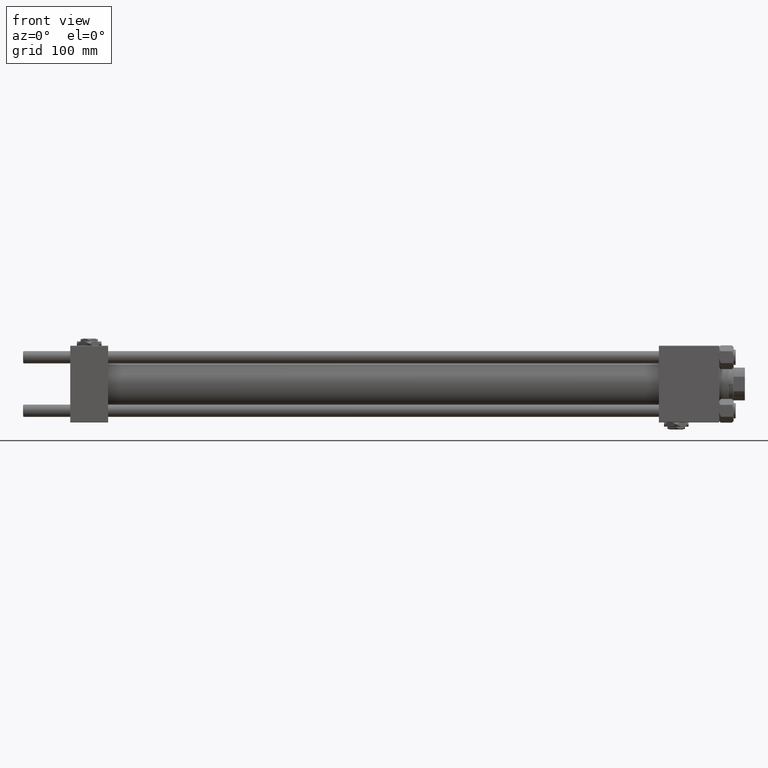
[diagram: clean part render]
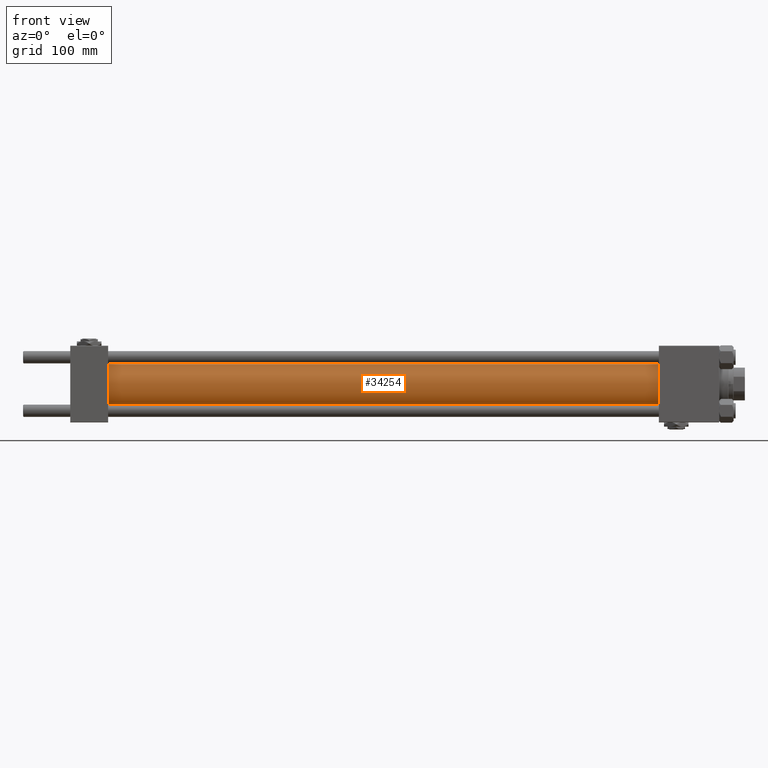
[diagram: same view with one face highlighted and labeled with its STEP entity id]
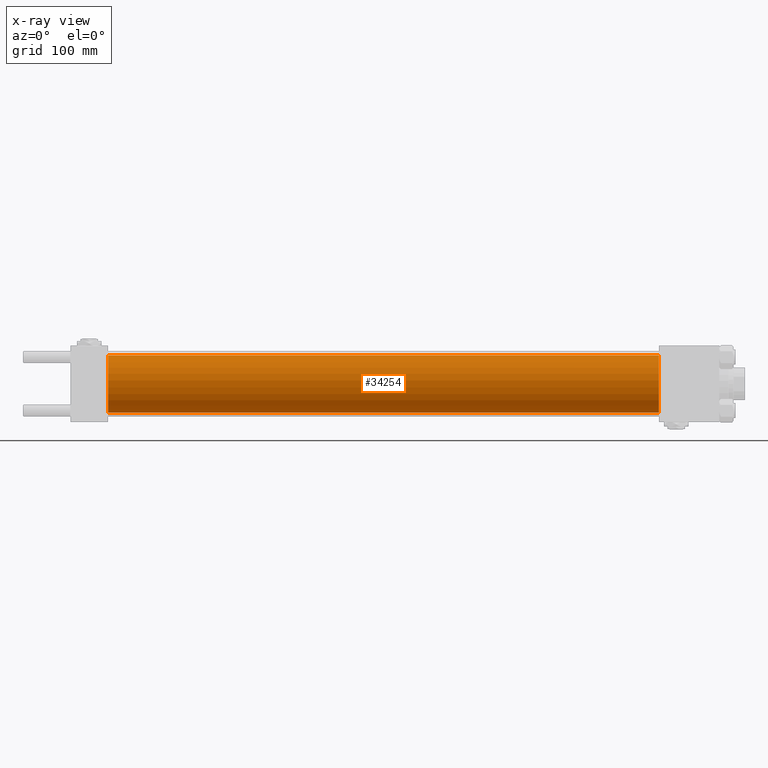
[diagram: x-ray of the same camera — body ghosted, the highlighted face saturated]
A machine part, front view. The second image highlights one B-rep face of the part: STEP entity #34254.
The next image is the same camera in x-ray: the body ghosted, the highlighted face saturated — about 0% of this face is hidden behind the body in this view.
In plain terms, the highlighted cylindrical surface (edge-blend (fillet) strip) has radius 28 mm, axis along (-1, -0, -0).
Its self-contained STEP definition (entity closure, byte-faithful):
#167 = AXIS2_PLACEMENT_3D ( 'NONE', #5586, #9006, #45372 ) ;
#2833 = CARTESIAN_POINT ( 'NONE',  ( 575.0000000000001137, 3.429011037612589276E-15, -28.00000000000000000 ) ) ;
#2874 = CARTESIAN_POINT ( 'NONE',  ( 575.0000000000001137, 0.000000000000000000, 0.000000000000000000 ) ) ;
#2952 = CARTESIAN_POINT ( 'NONE',  ( 575.0000000000001137, 0.000000000000000000, 0.000000000000000000 ) ) ;
#5540 = ORIENTED_EDGE ( 'NONE', *, *, #32901, .F. ) ;
#5586 = CARTESIAN_POINT ( 'NONE',  ( 37.00000000000003553, 0.000000000000000000, 0.000000000000000000 ) ) ;
#9006 = DIRECTION ( 'NONE',  ( 1.000000000000000000, -0.000000000000000000, 0.000000000000000000 ) ) ;
#10258 = CARTESIAN_POINT ( 'NONE',  ( 575.0000000000001137, 3.429011037612589276E-15, -28.00000000000000000 ) ) ;
#12708 = VERTEX_POINT ( 'NONE', #35493 ) ;
#12996 = VECTOR ( 'NONE', #27300, 1000.000000000000000 ) ;
#14842 = VECTOR ( 'NONE', #26211, 1000.000000000000000 ) ;
#15262 = ORIENTED_EDGE ( 'NONE', *, *, #46131, .T. ) ;
#17265 = VERTEX_POINT ( 'NONE', #27722 ) ;
#18091 = LINE ( 'NONE', #10258, #14842 ) ;
#19724 = EDGE_CURVE ( 'NONE', #12708, #17265, #40121, .T. ) ;
#23051 = EDGE_CURVE ( 'NONE', #12708, #51123, #44858, .T. ) ;
#23270 = DIRECTION ( 'NONE',  ( -1.000000000000000000, -0.000000000000000000, -0.000000000000000000 ) ) ;
#26211 = DIRECTION ( 'NONE',  ( -1.000000000000000000, -0.000000000000000000, -0.000000000000000000 ) ) ;
#26508 = ORIENTED_EDGE ( 'NONE', *, *, #19724, .T. ) ;
#26939 = DIRECTION ( 'NONE',  ( 0.000000000000000000, 0.000000000000000000, 1.000000000000000000 ) ) ;
#27300 = DIRECTION ( 'NONE',  ( -1.000000000000000000, -0.000000000000000000, -0.000000000000000000 ) ) ;
#27722 = CARTESIAN_POINT ( 'NONE',  ( 37.00000000000003553, 0.000000000000000000, 28.00000000000000000 ) ) ;
#30314 = EDGE_LOOP ( 'NONE', ( #5540, #38062, #26508, #15262 ) ) ;
#30549 = VERTEX_POINT ( 'NONE', #48247 ) ;
#32901 = EDGE_CURVE ( 'NONE', #51123, #30549, #18091, .T. ) ;
#34254 = ADVANCED_FACE ( 'NONE', ( #50518 ), #47364, .T. ) ;
#34888 = DIRECTION ( 'NONE',  ( 0.000000000000000000, 0.000000000000000000, -1.000000000000000000 ) ) ;
#35493 = CARTESIAN_POINT ( 'NONE',  ( 575.0000000000001137, 0.000000000000000000, 28.00000000000000000 ) ) ;
#38062 = ORIENTED_EDGE ( 'NONE', *, *, #23051, .F. ) ;
#39601 = CARTESIAN_POINT ( 'NONE',  ( 575.0000000000001137, 0.000000000000000000, 28.00000000000000000 ) ) ;
#40121 = LINE ( 'NONE', #39601, #12996 ) ;
#42726 = DIRECTION ( 'NONE',  ( 1.000000000000000000, 0.000000000000000000, 0.000000000000000000 ) ) ;
#44858 = CIRCLE ( 'NONE', #46536, 28.00000000000000000 ) ;
#45372 = DIRECTION ( 'NONE',  ( 0.000000000000000000, 0.000000000000000000, 1.000000000000000000 ) ) ;
#46131 = EDGE_CURVE ( 'NONE', #17265, #30549, #51138, .T. ) ;
#46536 = AXIS2_PLACEMENT_3D ( 'NONE', #2952, #42726, #34888 ) ;
#47364 = CYLINDRICAL_SURFACE ( 'NONE', #51701, 28.00000000000000000 ) ;
#48247 = CARTESIAN_POINT ( 'NONE',  ( 37.00000000000003553, 3.429011037612589276E-15, -28.00000000000000000 ) ) ;
#50518 = FACE_OUTER_BOUND ( 'NONE', #30314, .T. ) ;
#51123 = VERTEX_POINT ( 'NONE', #2833 ) ;
#51138 = CIRCLE ( 'NONE', #167, 28.00000000000000000 ) ;
#51701 = AXIS2_PLACEMENT_3D ( 'NONE', #2874, #23270, #26939 ) ;